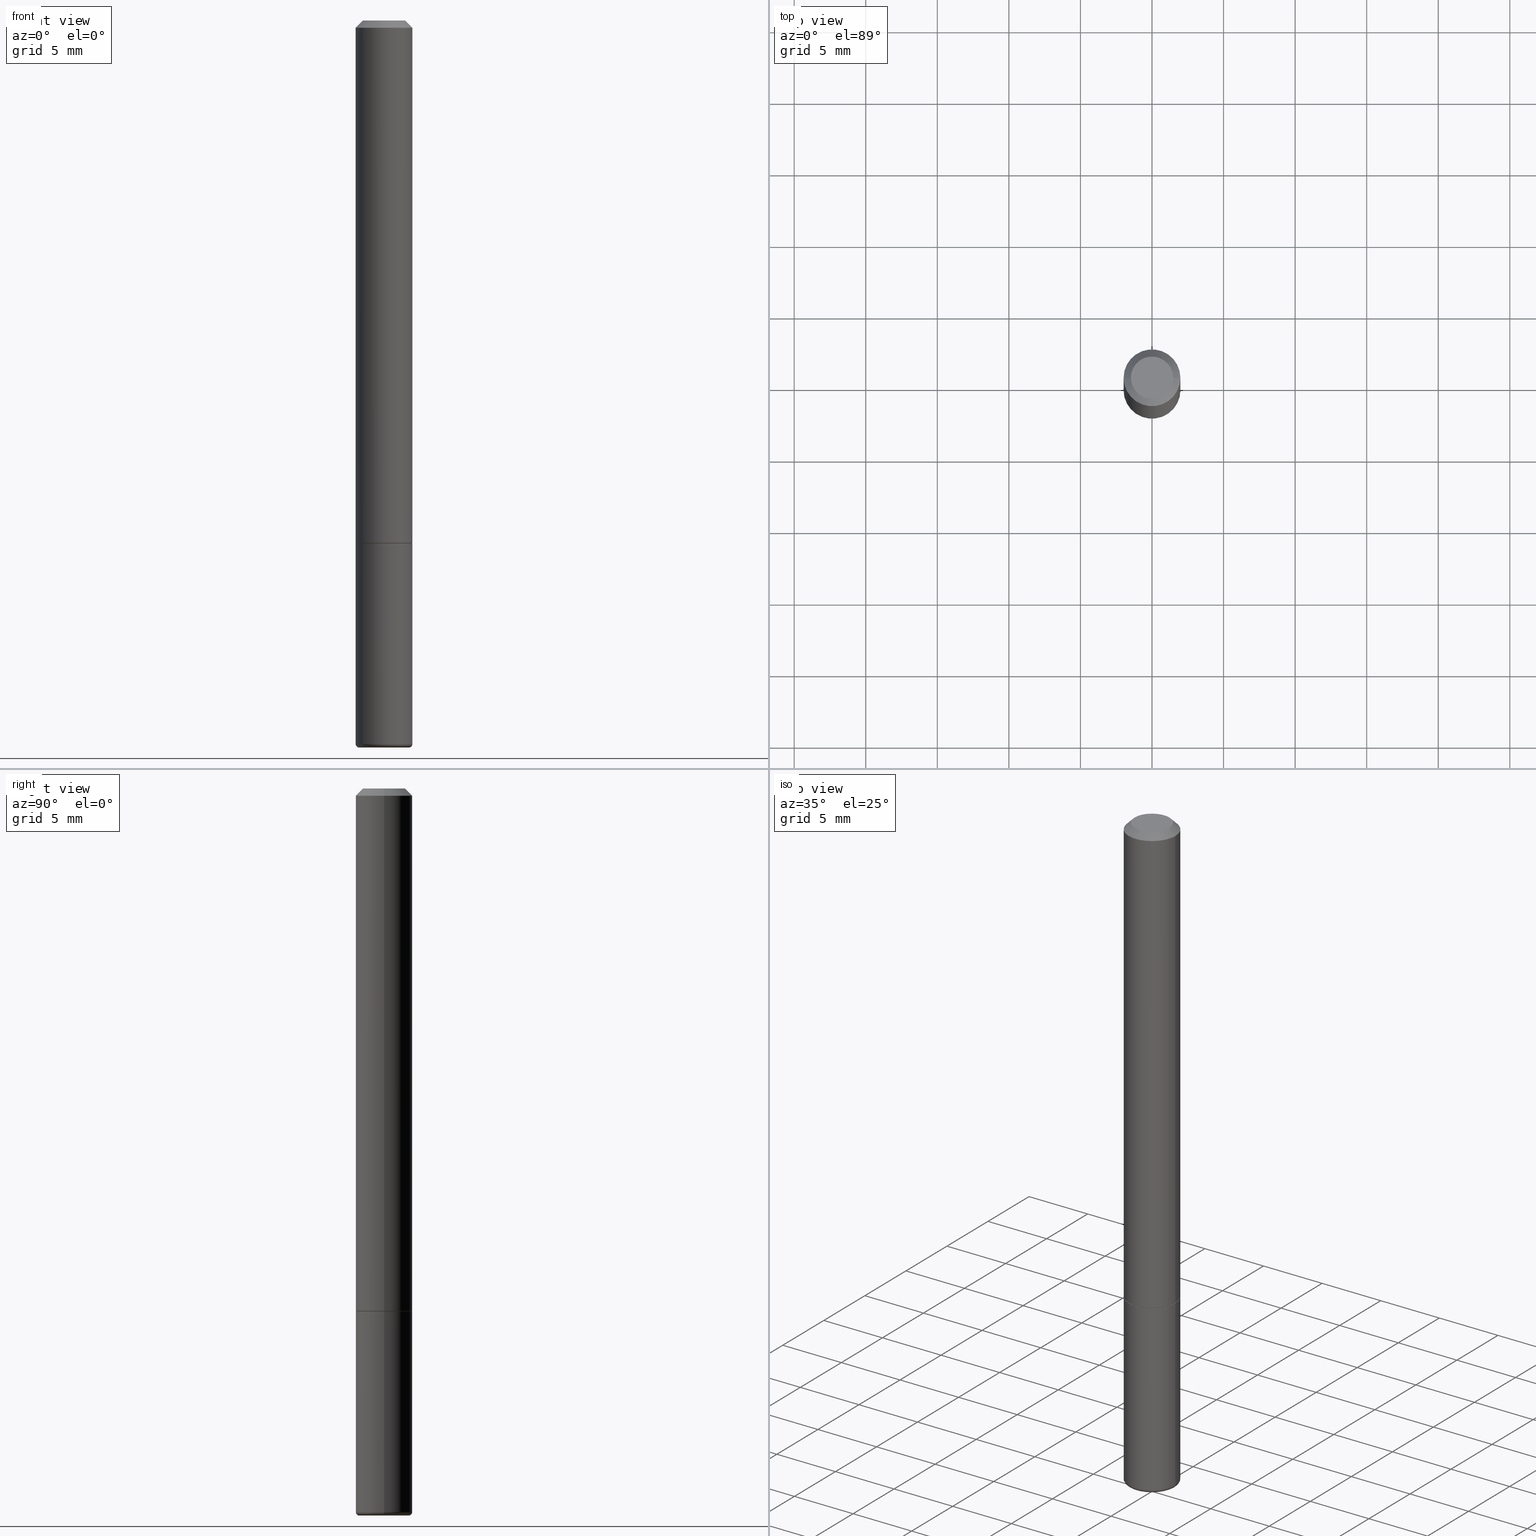
[diagram: canonical four-view strip — front | top / right | iso, engineering-drawing reading convention]
A machine part, canonical four-view strip (front | top / right | iso — engineering-drawing reading convention). The complete STEP part file that produces these views, byte-faithful:
ISO-10303-21;
HEADER;
FILE_DESCRIPTION (( 'STEP AP203' ),
    '1' );
FILE_NAME ('32609.STEP',
    '2022-04-26T19:39:57',
    ( '' ),
    ( '' ),
    'SwSTEP 2.0',
    'SolidWorks 2022',
    '' );
FILE_SCHEMA (( 'CONFIG_CONTROL_DESIGN' ));
ENDSEC;

DATA;
#1 = LINE ( 'NONE', #266, #201 ) ;
#2 = CARTESIAN_POINT ( 'NONE',  ( 0.000000000000000000, 0.000000000000000000, 0.000000000000000000 ) ) ;
#3 = AXIS2_PLACEMENT_3D ( 'NONE', #417, #82, #48 ) ;
#4 = CARTESIAN_POINT ( 'NONE',  ( 4.866482924308422769E-29, -6.948047864297861094E-15, -1.990000000000000435 ) ) ;
#5 = DIRECTION ( 'NONE',  ( 1.000000000000000000, -6.982962677686266711E-15, 0.000000000000000000 ) ) ;
#6 = DIRECTION ( 'NONE',  ( 1.000000000000000000, -6.982962677686267499E-15, 4.876176775795936353E-29 ) ) ;
#7 = DIRECTION ( 'NONE',  ( 1.000000000000000000, -6.982962677686266711E-15, 0.000000000000000000 ) ) ;
#8 = CONICAL_SURFACE ( 'NONE', #321, 0.07809999999999980846, 0.7853981633974471688 ) ;
#9 = ORIENTED_EDGE ( 'NONE', *, *, #379, .F. ) ;
#10 = ORIENTED_EDGE ( 'NONE', *, *, #405, .F. ) ;
#11 = DIRECTION ( 'NONE',  ( 1.000000000000000000, -6.982962677686270655E-15, 4.883557194083114022E-29 ) ) ;
#12 = ORIENTED_EDGE ( 'NONE', *, *, #276, .F. ) ;
#13 = EDGE_LOOP ( 'NONE', ( #376, #45, #312, #85 ) ) ;
#14 = TOROIDAL_SURFACE ( 'NONE', #133, 0.06810000000000002163, 0.01000000000000008694 ) ;
#15 = VERTEX_POINT ( 'NONE', #104 ) ;
#16 = APPROVAL_ROLE ( '' ) ;
#17 = PRODUCT ( '32609', '32609', '', ( #385 ) ) ;
#18 = FACE_OUTER_BOUND ( 'NONE', #41, .T. ) ;
#19 = DIRECTION ( 'NONE',  ( -2.445468806185136597E-29, 3.491481338843145583E-15, 1.000000000000000000 ) ) ;
#20 = PRODUCT_DEFINITION ( 'UNKNOWN', '', #353, #126 ) ;
#21 = ADVANCED_FACE ( 'NONE', ( #406 ), #235, .T. ) ;
#22 = EDGE_CURVE ( 'NONE', #145, #437, #342, .T. ) ;
#23 = DIRECTION ( 'NONE',  ( 0.000000000000000000, 0.000000000000000000, 1.000000000000000000 ) ) ;
#24 = ORIENTED_EDGE ( 'NONE', *, *, #203, .T. ) ;
#25 = FACE_OUTER_BOUND ( 'NONE', #377, .T. ) ;
#26 = COORDINATED_UNIVERSAL_TIME_OFFSET ( 5, 0, .BEHIND. ) ;
#27 = ORIENTED_EDGE ( 'NONE', *, *, #442, .T. ) ;
#28 = ORIENTED_EDGE ( 'NONE', *, *, #250, .F. ) ;
#29 = DIRECTION ( 'NONE',  ( -1.000000000000000000, 6.982962677686265922E-15, -4.876176775795935793E-29 ) ) ;
#30 = CIRCLE ( 'NONE', #66, 0.07810000000000000275 ) ;
#31 = VECTOR ( 'NONE', #344, 39.37007874015748143 ) ;
#32 = FACE_OUTER_BOUND ( 'NONE', #384, .T. ) ;
#33 = EDGE_CURVE ( 'NONE', #282, #61, #372, .T. ) ;
#34 = DIRECTION ( 'NONE',  ( -1.000000000000000000, 6.982962677686267499E-15, 0.000000000000000000 ) ) ;
#35 = CARTESIAN_POINT ( 'NONE',  ( 4.890937612370270531E-31, -6.982962677686289144E-17, -0.01999999999999999001 ) ) ;
#36 = LOCAL_TIME ( 15, 39, 57.00000000000000000, #26 ) ;
#37 = CARTESIAN_POINT ( 'NONE',  ( 0.000000000000000000, 0.000000000000000000, 0.000000000000000000 ) ) ;
#38 = DIRECTION ( 'NONE',  ( 0.7071067811865232589, -2.468850131082003836E-15, 0.7071067811865715536 ) ) ;
#39 = CLOSED_SHELL ( 'NONE', ( #428, #93, #219, #412, #121, #21, #429 ) ) ;
#40 = CARTESIAN_POINT ( 'NONE',  ( -0.07809999999999980846, 4.755397583504332507E-16, -0.01999999999999999001 ) ) ;
#41 = EDGE_LOOP ( 'NONE', ( #314, #332, #115, #182 ) ) ;
#42 = CIRCLE ( 'NONE', #161, 0.06792547593562725528 ) ;
#43 = ORIENTED_EDGE ( 'NONE', *, *, #276, .T. ) ;
#44 = DIRECTION ( 'NONE',  ( -2.445468806185136597E-29, 3.491481338843145583E-15, 1.000000000000000000 ) ) ;
#45 = ORIENTED_EDGE ( 'NONE', *, *, #298, .F. ) ;
#46 = EDGE_CURVE ( 'NONE', #217, #357, #89, .T. ) ;
#47 = CARTESIAN_POINT ( 'NONE',  ( 0.05809999999999986703, -5.021147270366716439E-16, 3.173941575800420060E-30 ) ) ;
#48 = DIRECTION ( 'NONE',  ( -1.000000000000000000, 6.982962677686265922E-15, -4.876176775795935793E-29 ) ) ;
#49 = ORIENTED_EDGE ( 'NONE', *, *, #389, .T. ) ;
#50 = VECTOR ( 'NONE', #227, 39.37007874015748143 ) ;
#51 = AXIS2_PLACEMENT_3D ( 'NONE', #169, #268, #407 ) ;
#52 = DIRECTION ( 'NONE',  ( -2.445468806185136597E-29, 3.491481338843145583E-15, 1.000000000000000000 ) ) ;
#53 = PERSON_AND_ORGANIZATION ( #213, #109 ) ;
#54 = APPLICATION_PROTOCOL_DEFINITION ( 'international standard', 'config_control_design', 1994, #360 ) ;
#55 = CC_DESIGN_DATE_AND_TIME_ASSIGNMENT ( #91, #122, ( #20 ) ) ;
#56 = DATE_TIME_ROLE ( 'classification_date' ) ;
#57 = CARTESIAN_POINT ( 'NONE',  ( 1.011663338894892835E-27, -1.444387129375576448E-13, -41.36889157351630786 ) ) ;
#58 = ORIENTED_EDGE ( 'NONE', *, *, #262, .F. ) ;
#59 = DIRECTION ( 'NONE',  ( -2.445468806185136877E-29, 3.491481338843145188E-15, 1.000000000000000000 ) ) ;
#60 = PERSON_AND_ORGANIZATION ( #213, #109 ) ;
#61 = VERTEX_POINT ( 'NONE', #239 ) ;
#62 = DIRECTION ( 'NONE',  ( 0.7071067811865466846, -7.319954787623252890E-15, -0.7071067811865483499 ) ) ;
#63 = CARTESIAN_POINT ( 'NONE',  ( 4.866482924308422769E-29, -6.948047864297861094E-15, -1.990000000000000435 ) ) ;
#64 = CARTESIAN_POINT ( 'NONE',  ( 4.890937612370270531E-31, -6.982962677686289144E-17, -0.01999999999999999001 ) ) ;
#65 = DIRECTION ( 'NONE',  ( 1.000000000000000000, -6.982962677686266711E-15, 4.876176775795935232E-29 ) ) ;
#66 = AXIS2_PLACEMENT_3D ( 'NONE', #191, #163, #290 ) ;
#67 = AXIS2_PLACEMENT_3D ( 'NONE', #4, #68, #208 ) ;
#68 = DIRECTION ( 'NONE',  ( -2.445468806185136597E-29, 3.491481338843145583E-15, 1.000000000000000000 ) ) ;
#69 = DIRECTION ( 'NONE',  ( 1.000000000000000000, -6.982962677686265922E-15, 0.000000000000000000 ) ) ;
#70 = EDGE_CURVE ( 'NONE', #348, #430, #212, .T. ) ;
#71 = DIRECTION ( 'NONE',  ( -0.7071067811865466846, 2.468850131082247989E-15, -0.7071067811865483499 ) ) ;
#72 = DIRECTION ( 'NONE',  ( -2.445468806185136877E-29, 3.491481338843145188E-15, 1.000000000000000000 ) ) ;
#73 = APPROVAL_PERSON_ORGANIZATION ( #60, #352, #214 ) ;
#74 = AXIS2_PLACEMENT_3D ( 'NONE', #393, #225, #423 ) ;
#75 = CARTESIAN_POINT ( 'NONE',  ( -0.06792547593562751895, -6.508636296668535347E-15, -1.999998476951564186 ) ) ;
#76 = CONICAL_SURFACE ( 'NONE', #280, 0.07710000000000000187, 0.7853981633974141952 ) ;
#77 = DIRECTION ( 'NONE',  ( -2.445468806185136597E-29, 3.491481338843145583E-15, 1.000000000000000000 ) ) ;
#78 = ORIENTED_EDGE ( 'NONE', *, *, #262, .T. ) ;
#79 = EDGE_CURVE ( 'NONE', #102, #15, #267, .T. ) ;
#80 = ORIENTED_EDGE ( 'NONE', *, *, #113, .T. ) ;
#81 = CARTESIAN_POINT ( 'NONE',  ( 4.866482924308422209E-29, -6.948047864297860305E-15, -1.989999999999999991 ) ) ;
#82 = DIRECTION ( 'NONE',  ( 2.438088387897960049E-29, -3.491481338843145188E-15, -1.000000000000000000 ) ) ;
#83 = EDGE_LOOP ( 'NONE', ( #84, #209 ) ) ;
#84 = ORIENTED_EDGE ( 'NONE', *, *, #358, .F. ) ;
#85 = ORIENTED_EDGE ( 'NONE', *, *, #70, .T. ) ;
#86 = AXIS2_PLACEMENT_3D ( 'NONE', #304, #136, #272 ) ;
#87 = CARTESIAN_POINT ( 'NONE',  ( -0.07810000000000000275, -5.429465138148513811E-15, -1.437999999999999723 ) ) ;
#88 = APPROVAL_STATUS ( 'not_yet_approved' ) ;
#89 = CIRCLE ( 'NONE', #248, 0.07810000000000000275 ) ;
#90 = CIRCLE ( 'NONE', #139, 0.01000000000000008174 ) ;
#91 = DATE_AND_TIME ( #422, #371 ) ;
#92 = CARTESIAN_POINT ( 'NONE',  ( -0.07809999999999991949, 5.549338766286376731E-16, -3.841688305489077071E-30 ) ) ;
#93 = ADVANCED_FACE ( 'NONE', ( #351 ), #14, .T. ) ;
#94 = LINE ( 'NONE', #294, #50 ) ;
#95 = CALENDAR_DATE ( 2022, 26, 4 ) ;
#96 = CARTESIAN_POINT ( 'NONE',  ( 0.07810000000000000275, -5.562628069044896697E-15, -1.436999999999999833 ) ) ;
#97 = CC_DESIGN_APPROVAL ( #105, ( #20 ) ) ;
#98 = DATE_AND_TIME ( #95, #230 ) ;
#99 = DIRECTION ( 'NONE',  ( 1.000000000000000000, -6.982962677686265922E-15, 0.000000000000000000 ) ) ;
#100 = CARTESIAN_POINT ( 'NONE',  ( 5.453693851273325407E-16, 0.07809999999999497899, -1.438000000000000167 ) ) ;
#101 = EDGE_LOOP ( 'NONE', ( #58, #112, #138 ) ) ;
#102 = VERTEX_POINT ( 'NONE', #87 ) ;
#103 = CARTESIAN_POINT ( 'NONE',  ( -0.05809999999999986703, 4.406249449620021933E-16, -2.959251149157180007E-30 ) ) ;
#104 = CARTESIAN_POINT ( 'NONE',  ( 0.07810000000000000275, -5.566119550383739704E-15, -1.437999999999999723 ) ) ;
#105 = APPROVAL ( #183, 'UNSPECIFIED' ) ;
#106 = DIRECTION ( 'NONE',  ( -0.9998476951563914916, 6.920964387254064677E-15, -0.01745240643727560825 ) ) ;
#107 = CARTESIAN_POINT ( 'NONE',  ( -0.07810000000000004439, 5.549338766286385606E-16, -3.841688305489084077E-30 ) ) ;
#108 = DIRECTION ( 'NONE',  ( -2.445468806185136597E-29, 3.491481338843145583E-15, 1.000000000000000000 ) ) ;
#109 = ORGANIZATION ( 'UNSPECIFIED', 'UNSPECIFIED', '' ) ;
#110 = CLOSED_SHELL ( 'NONE', ( #168, #338, #347, #232, #381, #424, #414, #131 ) ) ;
#111 = AXIS2_PLACEMENT_3D ( 'NONE', #234, #170, #237 ) ;
#112 = ORIENTED_EDGE ( 'NONE', *, *, #33, .T. ) ;
#113 = EDGE_CURVE ( 'NONE', #15, #102, #146, .T. ) ;
#114 = AXIS2_PLACEMENT_3D ( 'NONE', #365, #287, #195 ) ;
#115 = ORIENTED_EDGE ( 'NONE', *, *, #46, .F. ) ;
#116 = AXIS2_PLACEMENT_3D ( 'NONE', #197, #395, #263 ) ;
#117 = PERSON_AND_ORGANIZATION_ROLE ( 'creator' ) ;
#118 = LINE ( 'NONE', #160, #307 ) ;
#119 = PERSON_AND_ORGANIZATION ( #213, #109 ) ;
#120 = CARTESIAN_POINT ( 'NONE',  ( 0.000000000000000000, 0.000000000000000000, 0.000000000000000000 ) ) ;
#121 = ADVANCED_FACE ( 'NONE', ( #313 ), #200, .T. ) ;
#122 = DATE_TIME_ROLE ( 'creation_date' ) ;
#123 = VERTEX_POINT ( 'NONE', #47 ) ;
#124 = APPROVAL_DATE_TIME ( #155, #105 ) ;
#125 = AXIS2_PLACEMENT_3D ( 'NONE', #328, #23, #192 ) ;
#126 = DESIGN_CONTEXT ( 'detailed design', #382, 'design' ) ;
#127 = PLANE ( 'NONE',  #211 ) ;
#128 = CARTESIAN_POINT ( 'NONE',  ( -0.07810000000000009990, -6.393113987669221646E-15, -1.990000000000000435 ) ) ;
#129 = VECTOR ( 'NONE', #71, 39.37007874015748143 ) ;
#130 = CARTESIAN_POINT ( 'NONE',  ( 3.516584143294225538E-29, -5.020750165256442268E-15, -1.437999999999999723 ) ) ;
#131 = ADVANCED_FACE ( 'NONE', ( #142 ), #277, .F. ) ;
#132 = CARTESIAN_POINT ( 'NONE',  ( 0.07710000000000000187, -5.559136587706053690E-15, -1.437999999999999723 ) ) ;
#133 = AXIS2_PLACEMENT_3D ( 'NONE', #81, #52, #419 ) ;
#134 = CARTESIAN_POINT ( 'NONE',  ( 0.06810000000000002163, -7.423587622648295232E-15, -1.989999999999999991 ) ) ;
#135 = DIRECTION ( 'NONE',  ( -6.982962677686266711E-15, -1.000000000000000000, 3.491481338843145583E-15 ) ) ;
#136 = DIRECTION ( 'NONE',  ( -2.445468806185136597E-29, 3.491481338843145583E-15, 1.000000000000000000 ) ) ;
#137 = CC_DESIGN_APPROVAL ( #352, ( #242 ) ) ;
#138 = ORIENTED_EDGE ( 'NONE', *, *, #389, .F. ) ;
#139 = AXIS2_PLACEMENT_3D ( 'NONE', #134, #135, #403 ) ;
#140 = ORIENTED_EDGE ( 'NONE', *, *, #298, .T. ) ;
#141 = ORIENTED_EDGE ( 'NONE', *, *, #70, .F. ) ;
#142 = FACE_OUTER_BOUND ( 'NONE', #416, .T. ) ;
#143 = PRODUCT_RELATED_PRODUCT_CATEGORY ( 'detail', '', ( #17 ) ) ;
#144 = LOCAL_TIME ( 15, 39, 57.00000000000000000, #397 ) ;
#145 = VERTEX_POINT ( 'NONE', #180 ) ;
#146 = CIRCLE ( 'NONE', #184, 0.07810000000000000275 ) ;
#147 = PERSON_AND_ORGANIZATION_ROLE ( 'creator' ) ;
#148 = VERTEX_POINT ( 'NONE', #128 ) ;
#149 = CARTESIAN_POINT ( 'NONE',  ( 3.516584143294225538E-29, -5.020750165256442268E-15, -1.437999999999999723 ) ) ;
#150 = ORIENTED_EDGE ( 'NONE', *, *, #113, .F. ) ;
#151 = SHAPE_DEFINITION_REPRESENTATION ( #216, #271 ) ;
#152 = LINE ( 'NONE', #159, #374 ) ;
#153 = EDGE_CURVE ( 'NONE', #217, #430, #94, .T. ) ;
#154 = FACE_OUTER_BOUND ( 'NONE', #391, .T. ) ;
#155 = DATE_AND_TIME ( #387, #36 ) ;
#156 = ORIENTED_EDGE ( 'NONE', *, *, #330, .F. ) ;
#157 = EDGE_CURVE ( 'NONE', #430, #348, #164, .T. ) ;
#158 = COORDINATED_UNIVERSAL_TIME_OFFSET ( 5, 0, .BEHIND. ) ;
#159 = CARTESIAN_POINT ( 'NONE',  ( 0.07809999999999980846, -6.056345204028181313E-16, -0.01999999999999999001 ) ) ;
#160 = CARTESIAN_POINT ( 'NONE',  ( -0.07710000000000000187, -4.472921715985405406E-15, -1.437999999999999723 ) ) ;
#161 = AXIS2_PLACEMENT_3D ( 'NONE', #199, #19, #190 ) ;
#162 = UNCERTAINTY_MEASURE_WITH_UNIT (LENGTH_MEASURE( 1.000000000000000082E-05 ), #231, 'distance_accuracy_value', 'NONE');
#163 = DIRECTION ( 'NONE',  ( -2.445468806185136597E-29, 3.491481338843145583E-15, 1.000000000000000000 ) ) ;
#164 = CIRCLE ( 'NONE', #318, 0.07809999999999980846 ) ;
#165 = CIRCLE ( 'NONE', #86, 0.07710000000000000187 ) ;
#166 = CYLINDRICAL_SURFACE ( 'NONE', #116, 0.07810000000000004439 ) ;
#167 = CARTESIAN_POINT ( 'NONE',  ( -0.07809999999999980846, 4.755397583504332507E-16, -0.01999999999999999001 ) ) ;
#168 = ADVANCED_FACE ( 'NONE', ( #18 ), #76, .T. ) ;
#169 = CARTESIAN_POINT ( 'NONE',  ( 0.000000000000000000, 0.000000000000000000, 0.000000000000000000 ) ) ;
#170 = DIRECTION ( 'NONE',  ( 7.105427357601001859E-15, 1.000000000000000000, -3.491481338843145583E-15 ) ) ;
#171 = CARTESIAN_POINT ( 'NONE',  ( -0.07810000000000000275, -1.988610278718589859E-15, -1.436999999999999833 ) ) ;
#172 = ORIENTED_EDGE ( 'NONE', *, *, #46, .T. ) ;
#173 = AXIS2_PLACEMENT_3D ( 'NONE', #100, #326, #29 ) ;
#174 = EDGE_LOOP ( 'NONE', ( #349, #320, #28, #228 ) ) ;
#175 = CARTESIAN_POINT ( 'NONE',  ( 5.873584926685749889E-19, -6.978817707512542976E-15, -1.998812833358828200 ) ) ;
#176 = ORIENTED_EDGE ( 'NONE', *, *, #186, .T. ) ;
#177 = AXIS2_PLACEMENT_3D ( 'NONE', #179, #315, #11 ) ;
#178 = CC_DESIGN_PERSON_AND_ORGANIZATION_ASSIGNMENT ( #392, #285, ( #17 ) ) ;
#179 = CARTESIAN_POINT ( 'NONE',  ( 4.866482924308422209E-29, -6.948047864297860305E-15, -1.989999999999999991 ) ) ;
#180 = CARTESIAN_POINT ( 'NONE',  ( -0.07710000000000000187, -4.467623261637183004E-15, -1.437999999999999723 ) ) ;
#181 = LOCAL_TIME ( 15, 39, 57.00000000000000000, #246 ) ;
#182 = ORIENTED_EDGE ( 'NONE', *, *, #310, .F. ) ;
#183 = APPROVAL_STATUS ( 'not_yet_approved' ) ;
#184 = AXIS2_PLACEMENT_3D ( 'NONE', #322, #187, #323 ) ;
#185 = CONICAL_SURFACE ( 'NONE', #335, 2255.510300424621619, 1.553343034274961232 ) ;
#186 = EDGE_CURVE ( 'NONE', #123, #430, #152, .T. ) ;
#187 = DIRECTION ( 'NONE',  ( -2.445468806185136597E-29, 3.491481338843145583E-15, 1.000000000000000000 ) ) ;
#188 = PERSON_AND_ORGANIZATION ( #213, #109 ) ;
#189 = ORIENTED_EDGE ( 'NONE', *, *, #442, .F. ) ;
#190 = DIRECTION ( 'NONE',  ( 1.000000000000000000, -6.982962677686264344E-15, 0.000000000000000000 ) ) ;
#191 = CARTESIAN_POINT ( 'NONE',  ( 3.514138674488040496E-29, -5.017258683917599261E-15, -1.436999999999999833 ) ) ;
#192 = DIRECTION ( 'NONE',  ( 1.000000000000000000, 0.000000000000000000, 0.000000000000000000 ) ) ;
#193 = DIRECTION ( 'NONE',  ( 1.000000000000000000, -6.982962677686265922E-15, 0.000000000000000000 ) ) ;
#194 = ORIENTED_EDGE ( 'NONE', *, *, #153, .T. ) ;
#195 = DIRECTION ( 'NONE',  ( -1.000000000000000000, 6.982962677686268288E-15, 0.000000000000000000 ) ) ;
#196 = ORIENTED_EDGE ( 'NONE', *, *, #210, .F. ) ;
#197 = CARTESIAN_POINT ( 'NONE',  ( 0.000000000000000000, 0.000000000000000000, 0.000000000000000000 ) ) ;
#198 = CONICAL_SURFACE ( 'NONE', #425, 0.07710000000000000187, 0.7853981633974141952 ) ;
#199 = CARTESIAN_POINT ( 'NONE',  ( 4.890933887802832821E-29, -6.982957359991099141E-15, -1.999998476951564186 ) ) ;
#200 = TOROIDAL_SURFACE ( 'NONE', #177, 0.06810000000000002163, 0.01000000000000008694 ) ;
#201 = VECTOR ( 'NONE', #106, 39.37007874015747433 ) ;
#202 = LINE ( 'NONE', #92, #279 ) ;
#203 = EDGE_CURVE ( 'NONE', #123, #418, #260, .T. ) ;
#204 = EDGE_LOOP ( 'NONE', ( #196, #394, #433, #281 ) ) ;
#205 = LINE ( 'NONE', #167, #129 ) ;
#206 = LINE ( 'NONE', #107, #31 ) ;
#207 = DIRECTION ( 'NONE',  ( -2.445468806185136597E-29, 3.491481338843145583E-15, 1.000000000000000000 ) ) ;
#208 = DIRECTION ( 'NONE',  ( 1.000000000000000000, -6.982962677686270655E-15, 0.000000000000000000 ) ) ;
#209 = ORIENTED_EDGE ( 'NONE', *, *, #22, .F. ) ;
#210 = EDGE_CURVE ( 'NONE', #145, #357, #118, .T. ) ;
#211 = AXIS2_PLACEMENT_3D ( 'NONE', #401, #295, #288 ) ;
#212 = CIRCLE ( 'NONE', #386, 0.07809999999999980846 ) ;
#213 = PERSON ( 'UNSPECIFIED', 'UNSPECIFIED', 'UNSPECIFIED', ('UNSPECIFIED'), ('UNSPECIFIED'), ('UNSPECIFIED') ) ;
#214 = APPROVAL_ROLE ( '' ) ;
#215 = PERSON_AND_ORGANIZATION ( #213, #109 ) ;
#216 = PRODUCT_DEFINITION_SHAPE ( 'NONE', 'NONE',  #20 ) ;
#217 = VERTEX_POINT ( 'NONE', #96 ) ;
#218 = APPROVAL_ROLE ( '' ) ;
#219 = ADVANCED_FACE ( 'NONE', ( #247 ), #185, .F. ) ;
#220 = CARTESIAN_POINT ( 'NONE',  ( 0.07710000000000000187, -5.559136587706053690E-15, -1.437999999999999723 ) ) ;
#221 = CC_DESIGN_PERSON_AND_ORGANIZATION_ASSIGNMENT ( #355, #245, ( #242 ) ) ;
#222 = CALENDAR_DATE ( 2022, 26, 4 ) ;
#223 = FACE_OUTER_BOUND ( 'NONE', #204, .T. ) ;
#224 = CALENDAR_DATE ( 2022, 26, 4 ) ;
#225 = DIRECTION ( 'NONE',  ( -2.445468806185136597E-29, 3.491481338843145583E-15, 1.000000000000000000 ) ) ;
#226 = DIRECTION ( 'NONE',  ( 1.000000000000000000, -6.982962677686264344E-15, 0.000000000000000000 ) ) ;
#227 = DIRECTION ( 'NONE',  ( -2.445468806185136877E-29, 3.491481338843145188E-15, 1.000000000000000000 ) ) ;
#228 = ORIENTED_EDGE ( 'NONE', *, *, #243, .F. ) ;
#229 = LENGTH_MEASURE_WITH_UNIT ( LENGTH_MEASURE( 0.02539999999999999897 ), #400 );
#230 = LOCAL_TIME ( 15, 39, 57.00000000000000000, #390 ) ;
#231 =( CONVERSION_BASED_UNIT ( 'INCH', #229 ) LENGTH_UNIT ( ) NAMED_UNIT ( #436 ) );
#232 = ADVANCED_FACE ( 'NONE', ( #367 ), #8, .T. ) ;
#233 = DIRECTION ( 'NONE',  ( -2.445468806185136597E-29, 3.491481338843145583E-15, 1.000000000000000000 ) ) ;
#234 = CARTESIAN_POINT ( 'NONE',  ( -0.06810000000000002163, -6.464168261245231728E-15, -1.989999999999999991 ) ) ;
#235 = CYLINDRICAL_SURFACE ( 'NONE', #238, 0.07810000000000004439 ) ;
#236 = FACE_OUTER_BOUND ( 'NONE', #421, .T. ) ;
#237 = DIRECTION ( 'NONE',  ( -1.000000000000000000, 7.105427357600964782E-15, 0.000000000000000000 ) ) ;
#238 = AXIS2_PLACEMENT_3D ( 'NONE', #37, #296, #264 ) ;
#239 = CARTESIAN_POINT ( 'NONE',  ( 0.06792547593562751895, -7.448959951645150745E-15, -1.999998476951564186 ) ) ;
#240 = ORIENTED_EDGE ( 'NONE', *, *, #153, .F. ) ;
#241 = ORIENTED_EDGE ( 'NONE', *, *, #379, .T. ) ;
#242 = SECURITY_CLASSIFICATION ( '', '', #258 ) ;
#243 = EDGE_CURVE ( 'NONE', #61, #325, #90, .T. ) ;
#244 = VERTEX_POINT ( 'NONE', #75 ) ;
#245 = PERSON_AND_ORGANIZATION_ROLE ( 'classification_officer' ) ;
#246 = COORDINATED_UNIVERSAL_TIME_OFFSET ( 5, 0, .BEHIND. ) ;
#247 = FACE_OUTER_BOUND ( 'NONE', #101, .T. ) ;
#248 = AXIS2_PLACEMENT_3D ( 'NONE', #305, #207, #5 ) ;
#249 = VECTOR ( 'NONE', #72, 39.37007874015748143 ) ;
#250 = EDGE_CURVE ( 'NONE', #325, #148, #388, .T. ) ;
#251 = EDGE_CURVE ( 'NONE', #148, #102, #206, .T. ) ;
#252 = APPROVAL_DATE_TIME ( #98, #284 ) ;
#253 = ORIENTED_EDGE ( 'NONE', *, *, #157, .F. ) ;
#254 = DIRECTION ( 'NONE',  ( -2.445468806185136597E-29, 3.491481338843145583E-15, 1.000000000000000000 ) ) ;
#255 = APPROVAL_STATUS ( 'not_yet_approved' ) ;
#256 = DIRECTION ( 'NONE',  ( -2.445468806185136597E-29, 3.491481338843145583E-15, 1.000000000000000000 ) ) ;
#257 = ORIENTED_EDGE ( 'NONE', *, *, #251, .F. ) ;
#258 = SECURITY_CLASSIFICATION_LEVEL ( 'unclassified' ) ;
#259 = CARTESIAN_POINT ( 'NONE',  ( 0.07809999999999980846, -6.056345204028181313E-16, -0.01999999999999999001 ) ) ;
#260 = CIRCLE ( 'NONE', #74, 0.05809999999999986703 ) ;
#261 = PLANE ( 'NONE',  #173 ) ;
#262 = EDGE_CURVE ( 'NONE', #282, #244, #1, .T. ) ;
#263 = DIRECTION ( 'NONE',  ( 1.000000000000000000, -6.982962677686266711E-15, 4.876176775795936353E-29 ) ) ;
#264 = DIRECTION ( 'NONE',  ( 1.000000000000000000, -6.982962677686266711E-15, 4.876176775795936353E-29 ) ) ;
#265 = CC_DESIGN_SECURITY_CLASSIFICATION ( #242, ( #353 ) ) ;
#266 = CARTESIAN_POINT ( 'NONE',  ( -5.873584925708143035E-19, -6.978817707512542976E-15, -1.998812833358828200 ) ) ;
#267 = CIRCLE ( 'NONE', #409, 0.07810000000000000275 ) ;
#268 = DIRECTION ( 'NONE',  ( -2.445468806185136597E-29, 3.491481338843145583E-15, 1.000000000000000000 ) ) ;
#269 = CC_DESIGN_PERSON_AND_ORGANIZATION_ASSIGNMENT ( #188, #319, ( #353 ) ) ;
#270 = CARTESIAN_POINT ( 'NONE',  ( 4.888444583624782518E-29, -6.978230349019923679E-15, -1.998812833358828200 ) ) ;
#271 = ADVANCED_BREP_SHAPE_REPRESENTATION ( '32609', ( #346, #354, #125 ), #340 ) ;
#272 = DIRECTION ( 'NONE',  ( 1.000000000000000000, -6.982962677686265922E-15, 0.000000000000000000 ) ) ;
#273 = ORIENTED_EDGE ( 'NONE', *, *, #336, .F. ) ;
#274 = AXIS2_PLACEMENT_3D ( 'NONE', #2, #108, #6 ) ;
#275 = ORIENTED_EDGE ( 'NONE', *, *, #413, .T. ) ;
#276 = EDGE_CURVE ( 'NONE', #325, #15, #369, .T. ) ;
#277 = PLANE ( 'NONE',  #3 ) ;
#278 = ORIENTED_EDGE ( 'NONE', *, *, #157, .T. ) ;
#279 = VECTOR ( 'NONE', #59, 39.37007874015748143 ) ;
#280 = AXIS2_PLACEMENT_3D ( 'NONE', #149, #331, #99 ) ;
#281 = ORIENTED_EDGE ( 'NONE', *, *, #413, .F. ) ;
#282 = VERTEX_POINT ( 'NONE', #270 ) ;
#283 = ORIENTED_EDGE ( 'NONE', *, *, #79, .F. ) ;
#284 = APPROVAL ( #255, 'UNSPECIFIED' ) ;
#285 = PERSON_AND_ORGANIZATION_ROLE ( 'design_owner' ) ;
#286 = DIRECTION ( 'NONE',  ( 2.445468806185136597E-29, -3.491481338843145583E-15, -1.000000000000000000 ) ) ;
#287 = DIRECTION ( 'NONE',  ( 2.445468806185136597E-29, -3.491481338843145583E-15, -1.000000000000000000 ) ) ;
#288 = DIRECTION ( 'NONE',  ( 1.000000000000000000, -6.982962677686265922E-15, 4.876176775795935793E-29 ) ) ;
#289 = PERSON_AND_ORGANIZATION ( #213, #109 ) ;
#290 = DIRECTION ( 'NONE',  ( 1.000000000000000000, -6.982962677686266711E-15, 0.000000000000000000 ) ) ;
#291 = AXIS2_PLACEMENT_3D ( 'NONE', #63, #333, #440 ) ;
#292 = DIRECTION ( 'NONE',  ( -0.7071067811865232589, 7.493145998870265808E-15, 0.7071067811865715536 ) ) ;
#293 = CIRCLE ( 'NONE', #274, 0.05809999999999986703 ) ;
#294 = CARTESIAN_POINT ( 'NONE',  ( 0.07809999999999991949, -5.453693851272968448E-16, 3.808294061896621499E-30 ) ) ;
#295 = DIRECTION ( 'NONE',  ( -2.438088387897960049E-29, 3.491481338843145188E-15, 1.000000000000000000 ) ) ;
#296 = DIRECTION ( 'NONE',  ( -2.445468806185136597E-29, 3.491481338843145583E-15, 1.000000000000000000 ) ) ;
#297 = DIRECTION ( 'NONE',  ( 2.445468806185136597E-29, -3.491481338843145583E-15, -1.000000000000000000 ) ) ;
#298 = EDGE_CURVE ( 'NONE', #418, #123, #293, .T. ) ;
#299 = AXIS2_PLACEMENT_3D ( 'NONE', #370, #303, #341 ) ;
#300 = CARTESIAN_POINT ( 'NONE',  ( 0.07810000000000004439, -5.453693851272977322E-16, 3.808294061896628505E-30 ) ) ;
#301 = CC_DESIGN_DATE_AND_TIME_ASSIGNMENT ( #359, #56, ( #242 ) ) ;
#302 = VECTOR ( 'NONE', #368, 39.37007874015747433 ) ;
#303 = DIRECTION ( 'NONE',  ( 2.445468806185136597E-29, -3.491481338843145583E-15, -1.000000000000000000 ) ) ;
#304 = CARTESIAN_POINT ( 'NONE',  ( 3.516584143294225538E-29, -5.020750165256442268E-15, -1.437999999999999723 ) ) ;
#305 = CARTESIAN_POINT ( 'NONE',  ( 3.514138674488040496E-29, -5.017258683917599261E-15, -1.436999999999999833 ) ) ;
#306 = APPROVAL_PERSON_ORGANIZATION ( #119, #105, #218 ) ;
#307 = VECTOR ( 'NONE', #292, 39.37007874015748854 ) ;
#308 = ORIENTED_EDGE ( 'NONE', *, *, #203, .F. ) ;
#309 = CIRCLE ( 'NONE', #111, 0.01000000000000008174 ) ;
#310 = EDGE_CURVE ( 'NONE', #437, #217, #339, .T. ) ;
#311 = EDGE_LOOP ( 'NONE', ( #156, #49, #441, #189 ) ) ;
#312 = ORIENTED_EDGE ( 'NONE', *, *, #336, .T. ) ;
#313 = FACE_OUTER_BOUND ( 'NONE', #311, .T. ) ;
#314 = ORIENTED_EDGE ( 'NONE', *, *, #358, .T. ) ;
#315 = DIRECTION ( 'NONE',  ( -2.445468806185136597E-29, 3.491481338843145583E-15, 1.000000000000000000 ) ) ;
#316 = CIRCLE ( 'NONE', #291, 0.07810000000000009990 ) ;
#317 = EDGE_LOOP ( 'NONE', ( #257, #27, #43, #283 ) ) ;
#318 = AXIS2_PLACEMENT_3D ( 'NONE', #64, #256, #193 ) ;
#319 = PERSON_AND_ORGANIZATION_ROLE ( 'design_supplier' ) ;
#320 = ORIENTED_EDGE ( 'NONE', *, *, #330, .T. ) ;
#321 = AXIS2_PLACEMENT_3D ( 'NONE', #35, #297, #34 ) ;
#322 = CARTESIAN_POINT ( 'NONE',  ( 3.516584143294225538E-29, -5.020750165256442268E-15, -1.437999999999999723 ) ) ;
#323 = DIRECTION ( 'NONE',  ( 1.000000000000000000, -6.982962677686266711E-15, 0.000000000000000000 ) ) ;
#324 = DATE_AND_TIME ( #222, #144 ) ;
#325 = VERTEX_POINT ( 'NONE', #408 ) ;
#326 = DIRECTION ( 'NONE',  ( 2.438088387897960049E-29, -3.491481338843145188E-15, -1.000000000000000000 ) ) ;
#327 = AXIS2_PLACEMENT_3D ( 'NONE', #120, #254, #65 ) ;
#328 = CARTESIAN_POINT ( 'NONE',  ( 0.000000000000000000, 0.000000000000000000, 0.000000000000000000 ) ) ;
#329 = DIRECTION ( 'NONE',  ( -1.000000000000000000, 6.982962677686268288E-15, 0.000000000000000000 ) ) ;
#330 = EDGE_CURVE ( 'NONE', #244, #148, #309, .T. ) ;
#331 = DIRECTION ( 'NONE',  ( -2.445468806185136597E-29, 3.491481338843145583E-15, 1.000000000000000000 ) ) ;
#332 = ORIENTED_EDGE ( 'NONE', *, *, #210, .T. ) ;
#333 = DIRECTION ( 'NONE',  ( -2.445468806185136597E-29, 3.491481338843145583E-15, 1.000000000000000000 ) ) ;
#334 = FACE_OUTER_BOUND ( 'NONE', #399, .T. ) ;
#335 = AXIS2_PLACEMENT_3D ( 'NONE', #57, #286, #329 ) ;
#336 = EDGE_CURVE ( 'NONE', #418, #348, #205, .T. ) ;
#337 = FACE_OUTER_BOUND ( 'NONE', #415, .T. ) ;
#338 = ADVANCED_FACE ( 'NONE', ( #337 ), #373, .T. ) ;
#339 = LINE ( 'NONE', #132, #438 ) ;
#340 =( GEOMETRIC_REPRESENTATION_CONTEXT ( 3 ) GLOBAL_UNCERTAINTY_ASSIGNED_CONTEXT ( ( #162 ) ) GLOBAL_UNIT_ASSIGNED_CONTEXT ( ( #231, #427, #431 ) ) REPRESENTATION_CONTEXT ( 'NONE', 'WORKASPACE' ) );
#341 = DIRECTION ( 'NONE',  ( -1.000000000000000000, 6.982962677686267499E-15, 0.000000000000000000 ) ) ;
#342 = CIRCLE ( 'NONE', #404, 0.07710000000000000187 ) ;
#343 = DIRECTION ( 'NONE',  ( 1.000000000000000000, -6.982962677686265922E-15, 0.000000000000000000 ) ) ;
#344 = DIRECTION ( 'NONE',  ( -2.445468806185136877E-29, 3.491481338843145188E-15, 1.000000000000000000 ) ) ;
#345 = ORIENTED_EDGE ( 'NONE', *, *, #79, .T. ) ;
#346 = MANIFOLD_SOLID_BREP ( 'Body-Move/Copy2[1]', #39 ) ;
#347 = ADVANCED_FACE ( 'NONE', ( #236 ), #410, .T. ) ;
#348 = VERTEX_POINT ( 'NONE', #40 ) ;
#349 = ORIENTED_EDGE ( 'NONE', *, *, #405, .T. ) ;
#350 = ORIENTED_EDGE ( 'NONE', *, *, #251, .T. ) ;
#351 = FACE_OUTER_BOUND ( 'NONE', #174, .T. ) ;
#352 = APPROVAL ( #88, 'UNSPECIFIED' ) ;
#353 = PRODUCT_DEFINITION_FORMATION_WITH_SPECIFIED_SOURCE ( 'ANY', '', #17, .NOT_KNOWN. ) ;
#354 = MANIFOLD_SOLID_BREP ( 'Body-Move/Copy2[2]', #110 ) ;
#355 = PERSON_AND_ORGANIZATION ( #213, #109 ) ;
#356 = APPROVAL_DATE_TIME ( #324, #352 ) ;
#357 = VERTEX_POINT ( 'NONE', #171 ) ;
#358 = EDGE_CURVE ( 'NONE', #437, #145, #165, .T. ) ;
#359 = DATE_AND_TIME ( #224, #181 ) ;
#360 = APPLICATION_CONTEXT ( 'configuration controlled 3d designs of mechanical parts and assemblies' ) ;
#361 = DIRECTION ( 'NONE',  ( -2.445468806185136597E-29, 3.491481338843145583E-15, 1.000000000000000000 ) ) ;
#362 = CC_DESIGN_APPROVAL ( #284, ( #353 ) ) ;
#363 = CARTESIAN_POINT ( 'NONE',  ( 4.890933887802832821E-29, -6.982957359991099141E-15, -1.999998476951564186 ) ) ;
#364 = DIRECTION ( 'NONE',  ( 1.000000000000000000, -6.982962677686265922E-15, 0.000000000000000000 ) ) ;
#365 = CARTESIAN_POINT ( 'NONE',  ( 1.011663338894892835E-27, -1.444387129375576448E-13, -41.36889157351630786 ) ) ;
#366 = AXIS2_PLACEMENT_3D ( 'NONE', #363, #361, #226 ) ;
#367 = FACE_OUTER_BOUND ( 'NONE', #13, .T. ) ;
#368 = DIRECTION ( 'NONE',  ( 0.9998476951563914916, -6.920387862090558723E-15, -0.01745240643727560825 ) ) ;
#369 = LINE ( 'NONE', #300, #249 ) ;
#370 = CARTESIAN_POINT ( 'NONE',  ( 4.890937612370270531E-31, -6.982962677686289144E-17, -0.01999999999999999001 ) ) ;
#371 = LOCAL_TIME ( 15, 39, 57.00000000000000000, #158 ) ;
#372 = LINE ( 'NONE', #175, #302 ) ;
#373 = CYLINDRICAL_SURFACE ( 'NONE', #51, 0.07809999999999991949 ) ;
#374 = VECTOR ( 'NONE', #62, 39.37007874015748143 ) ;
#375 = CARTESIAN_POINT ( 'NONE',  ( 3.516584143294225538E-29, -5.020750165256442268E-15, -1.437999999999999723 ) ) ;
#376 = ORIENTED_EDGE ( 'NONE', *, *, #186, .F. ) ;
#377 = EDGE_LOOP ( 'NONE', ( #80, #345 ) ) ;
#378 = CC_DESIGN_PERSON_AND_ORGANIZATION_ASSIGNMENT ( #53, #117, ( #20 ) ) ;
#379 = EDGE_CURVE ( 'NONE', #357, #348, #202, .T. ) ;
#380 = APPROVAL_PERSON_ORGANIZATION ( #215, #284, #16 ) ;
#381 = ADVANCED_FACE ( 'NONE', ( #154 ), #398, .T. ) ;
#382 = APPLICATION_CONTEXT ( 'configuration controlled 3d designs of mechanical parts and assemblies' ) ;
#383 = ORIENTED_EDGE ( 'NONE', *, *, #33, .F. ) ;
#384 = EDGE_LOOP ( 'NONE', ( #420, #350, #150, #12 ) ) ;
#385 = MECHANICAL_CONTEXT ( 'NONE', #360, 'mechanical' ) ;
#386 = AXIS2_PLACEMENT_3D ( 'NONE', #411, #44, #343 ) ;
#387 = CALENDAR_DATE ( 2022, 26, 4 ) ;
#388 = CIRCLE ( 'NONE', #67, 0.07810000000000009990 ) ;
#389 = EDGE_CURVE ( 'NONE', #244, #61, #42, .T. ) ;
#390 = COORDINATED_UNIVERSAL_TIME_OFFSET ( 5, 0, .BEHIND. ) ;
#391 = EDGE_LOOP ( 'NONE', ( #9, #275, #194, #141 ) ) ;
#392 = PERSON_AND_ORGANIZATION ( #213, #109 ) ;
#393 = CARTESIAN_POINT ( 'NONE',  ( 0.000000000000000000, 0.000000000000000000, 0.000000000000000000 ) ) ;
#394 = ORIENTED_EDGE ( 'NONE', *, *, #22, .T. ) ;
#395 = DIRECTION ( 'NONE',  ( -2.445468806185136597E-29, 3.491481338843145583E-15, 1.000000000000000000 ) ) ;
#396 = CONICAL_SURFACE ( 'NONE', #114, 2255.510300424621619, 1.553343034274961232 ) ;
#397 = COORDINATED_UNIVERSAL_TIME_OFFSET ( 5, 0, .BEHIND. ) ;
#398 = CYLINDRICAL_SURFACE ( 'NONE', #327, 0.07809999999999991949 ) ;
#399 = EDGE_LOOP ( 'NONE', ( #383, #78, #10 ) ) ;
#400 =( LENGTH_UNIT ( ) NAMED_UNIT ( * ) SI_UNIT ( $, .METRE. ) );
#401 = CARTESIAN_POINT ( 'NONE',  ( 3.516584143294225538E-29, -5.020750165256442268E-15, -1.437999999999999723 ) ) ;
#402 = CARTESIAN_POINT ( 'NONE',  ( 3.516584143294225538E-29, -5.020750165256442268E-15, -1.437999999999999723 ) ) ;
#403 = DIRECTION ( 'NONE',  ( 1.000000000000000000, -6.982962677686275388E-15, 0.000000000000000000 ) ) ;
#404 = AXIS2_PLACEMENT_3D ( 'NONE', #402, #233, #69 ) ;
#405 = EDGE_CURVE ( 'NONE', #61, #244, #435, .T. ) ;
#406 = FACE_OUTER_BOUND ( 'NONE', #317, .T. ) ;
#407 = DIRECTION ( 'NONE',  ( 1.000000000000000000, -6.982962677686266711E-15, 4.876176775795935232E-29 ) ) ;
#408 = CARTESIAN_POINT ( 'NONE',  ( 0.07810000000000009990, -7.493417249425160108E-15, -1.990000000000000435 ) ) ;
#409 = AXIS2_PLACEMENT_3D ( 'NONE', #375, #77, #7 ) ;
#410 = CONICAL_SURFACE ( 'NONE', #299, 0.07809999999999980846, 0.7853981633974471688 ) ;
#411 = CARTESIAN_POINT ( 'NONE',  ( 4.890937612370270531E-31, -6.982962677686289144E-17, -0.01999999999999999001 ) ) ;
#412 = ADVANCED_FACE ( 'NONE', ( #334 ), #396, .F. ) ;
#413 = EDGE_CURVE ( 'NONE', #357, #217, #30, .T. ) ;
#414 = ADVANCED_FACE ( 'NONE', ( #434 ), #127, .F. ) ;
#415 = EDGE_LOOP ( 'NONE', ( #172, #241, #253, #240 ) ) ;
#416 = EDGE_LOOP ( 'NONE', ( #140, #24 ) ) ;
#417 = CARTESIAN_POINT ( 'NONE',  ( 4.057101315735711358E-16, 0.05809999999999986703, -2.028550657867863075E-16 ) ) ;
#418 = VERTEX_POINT ( 'NONE', #103 ) ;
#419 = DIRECTION ( 'NONE',  ( 1.000000000000000000, -6.982962677686270655E-15, 4.883557194083114022E-29 ) ) ;
#420 = ORIENTED_EDGE ( 'NONE', *, *, #250, .T. ) ;
#421 = EDGE_LOOP ( 'NONE', ( #308, #176, #278, #273 ) ) ;
#422 = CALENDAR_DATE ( 2022, 26, 4 ) ;
#423 = DIRECTION ( 'NONE',  ( 1.000000000000000000, -6.982962677686267499E-15, 4.876176775795936353E-29 ) ) ;
#424 = ADVANCED_FACE ( 'NONE', ( #223 ), #198, .T. ) ;
#425 = AXIS2_PLACEMENT_3D ( 'NONE', #130, #439, #364 ) ;
#426 = APPLICATION_PROTOCOL_DEFINITION ( 'international standard', 'config_control_design', 1994, #382 ) ;
#427 =( NAMED_UNIT ( * ) PLANE_ANGLE_UNIT ( ) SI_UNIT ( $, .RADIAN. ) );
#428 = ADVANCED_FACE ( 'NONE', ( #32 ), #166, .T. ) ;
#429 = ADVANCED_FACE ( 'NONE', ( #25 ), #261, .F. ) ;
#430 = VERTEX_POINT ( 'NONE', #259 ) ;
#431 =( NAMED_UNIT ( * ) SI_UNIT ( $, .STERADIAN. ) SOLID_ANGLE_UNIT ( ) );
#432 = CC_DESIGN_PERSON_AND_ORGANIZATION_ASSIGNMENT ( #289, #147, ( #353 ) ) ;
#433 = ORIENTED_EDGE ( 'NONE', *, *, #310, .T. ) ;
#434 = FACE_OUTER_BOUND ( 'NONE', #83, .T. ) ;
#435 = CIRCLE ( 'NONE', #366, 0.06792547593562725528 ) ;
#436 = DIMENSIONAL_EXPONENTS ( 1.000000000000000000, 0.000000000000000000, 0.000000000000000000, 0.000000000000000000, 0.000000000000000000, 0.000000000000000000, 0.000000000000000000 ) ;
#437 = VERTEX_POINT ( 'NONE', #220 ) ;
#438 = VECTOR ( 'NONE', #38, 39.37007874015748854 ) ;
#439 = DIRECTION ( 'NONE',  ( -2.445468806185136597E-29, 3.491481338843145583E-15, 1.000000000000000000 ) ) ;
#440 = DIRECTION ( 'NONE',  ( 1.000000000000000000, -6.982962677686270655E-15, 0.000000000000000000 ) ) ;
#441 = ORIENTED_EDGE ( 'NONE', *, *, #243, .T. ) ;
#442 = EDGE_CURVE ( 'NONE', #148, #325, #316, .T. ) ;
ENDSEC;
END-ISO-10303-21;
